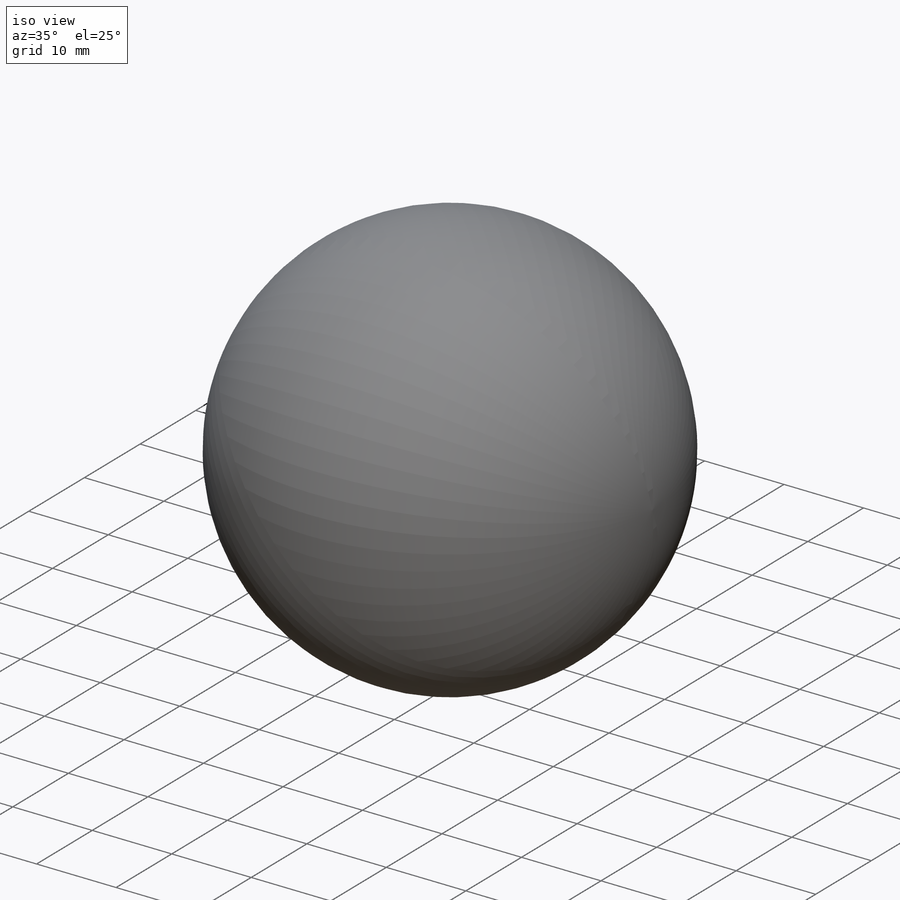
[diagram: iso view]
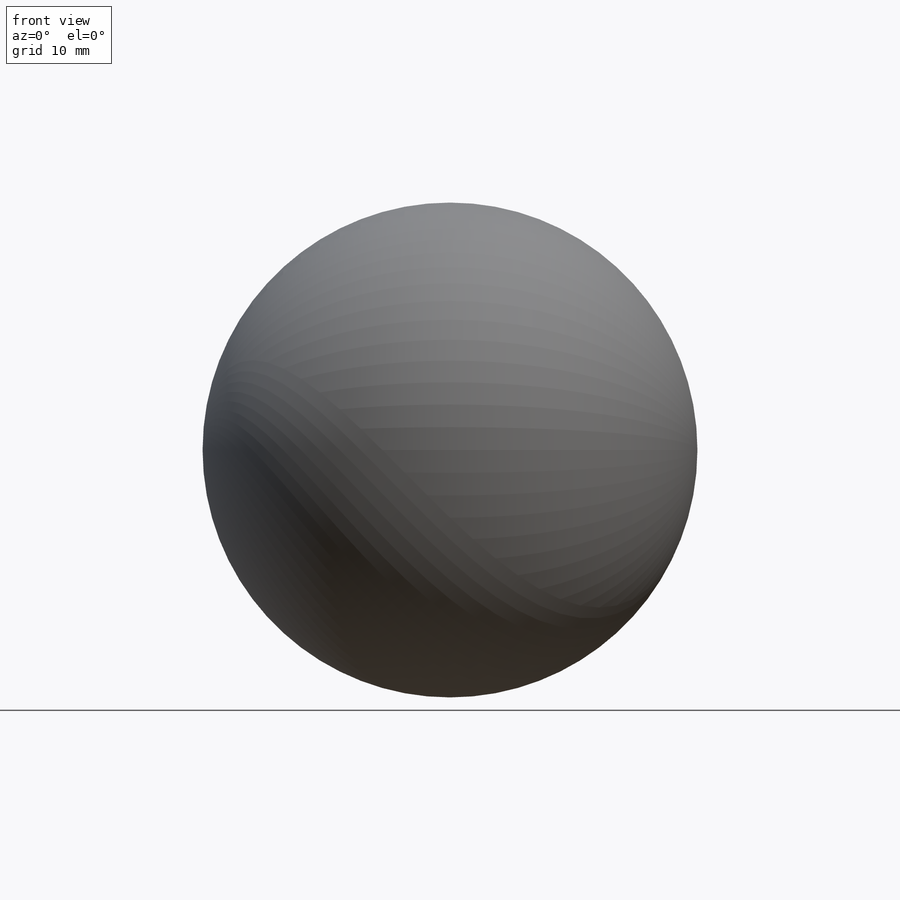
[diagram: front view]
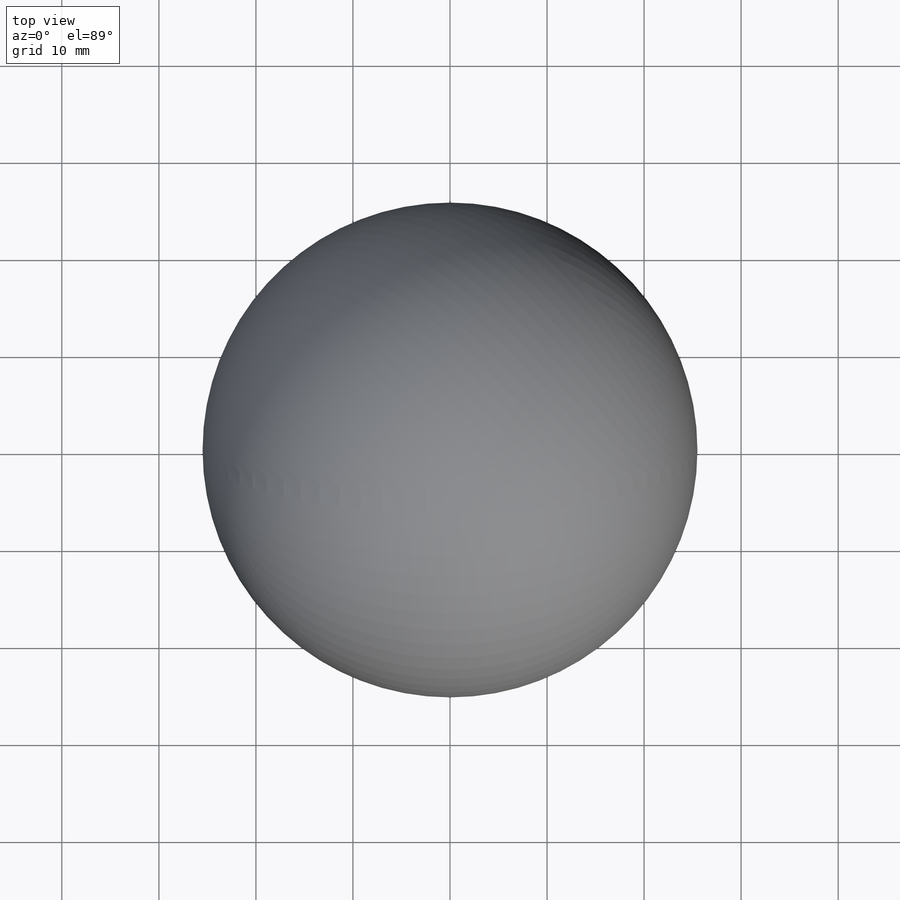
[diagram: top view]
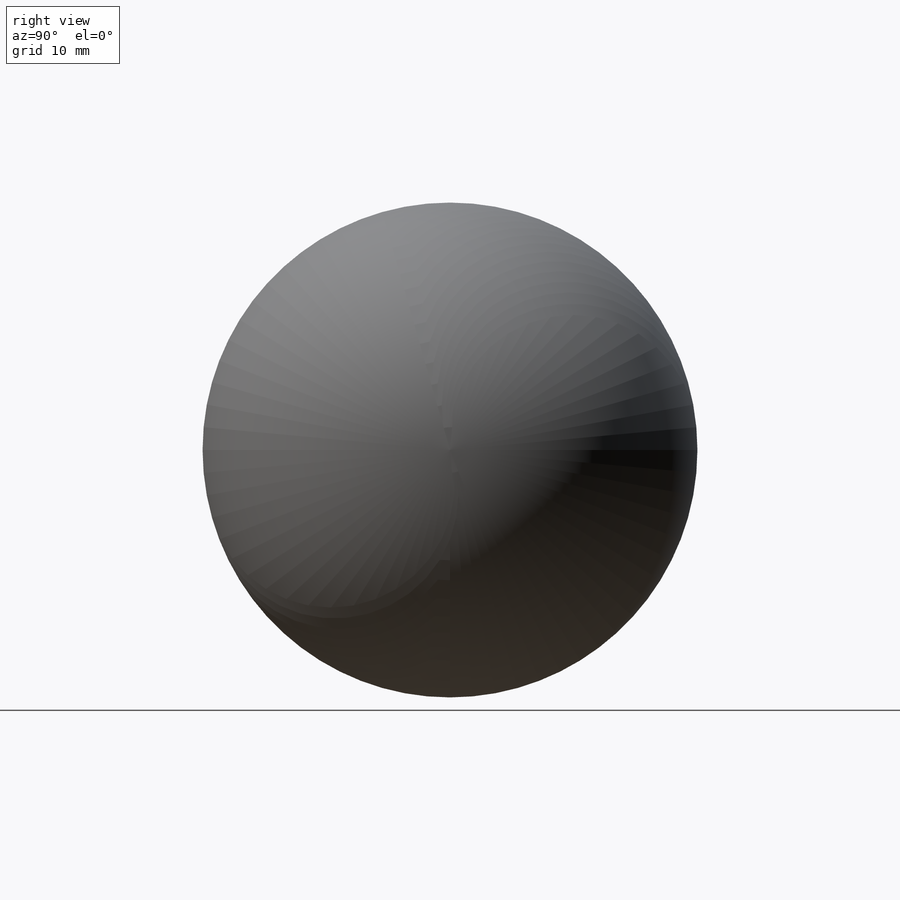
[diagram: right view]
SOLIDWORKS PART (.sldprt)
format: sldprt  version: not decoded by parser v0  size: 1,148,928 bytes
history: native  units: mm
features: plane x10, sketch x10, revolve x10, material x1, fillet x1 + 2 further entries (+9 scaffold rows collapsed)
feature tree (43):
  scaffold x9  (default folders/planes/origin — collapsed)
  material  "Glas"
  plane  "Ebene vorne"
  plane  "Ebene oben"
  plane  "Ebene rechts"
  "Y"
  "Z"
  plane  "Ebene1"
  plane  "Ebene2"
  plane  "Ebene3"
  plane  "Ebene4"
  plane  "Ebene5"
  plane  "Ebene6"
  plane  "Ebene7"
  sketch  "Skizze1"  dims[D1=10.0mm D2=50.0mm D3=0.5mm]
  revolve  "Rotation1"  Angle=360deg
  sketch  "Skizze2"
  revolve  "Rotation2"  Angle=360deg
  sketch  "Skizze3"
  revolve  "Rotation3"  Angle=360deg
  sketch  "Skizze4"
  revolve  "Rotation4"  Angle=360deg
  sketch  "Skizze5"
  revolve  "Rotation5"  Angle=360deg
  sketch  "Skizze6"
  revolve  "Rotation6"  Angle=360deg
  sketch  "Skizze7"
  revolve  "Rotation8"  Angle=360deg
  sketch  "Skizze8"
  revolve  "Rotation9"  Angle=360deg
  sketch  "Skizze9"
  revolve  "Rotation10"  Angle=360deg
  sketch  "Skizze10"
  revolve  "Rotation11"  Angle=360deg
  fillet  "Verrundung1"  Radius=3mm
decode coverage: 12 of 21 modeling features carry decoded parameters; 2 rows unclassified (native names shown)
note: suppression state not decoded; provenance and decode notes live in map.json
